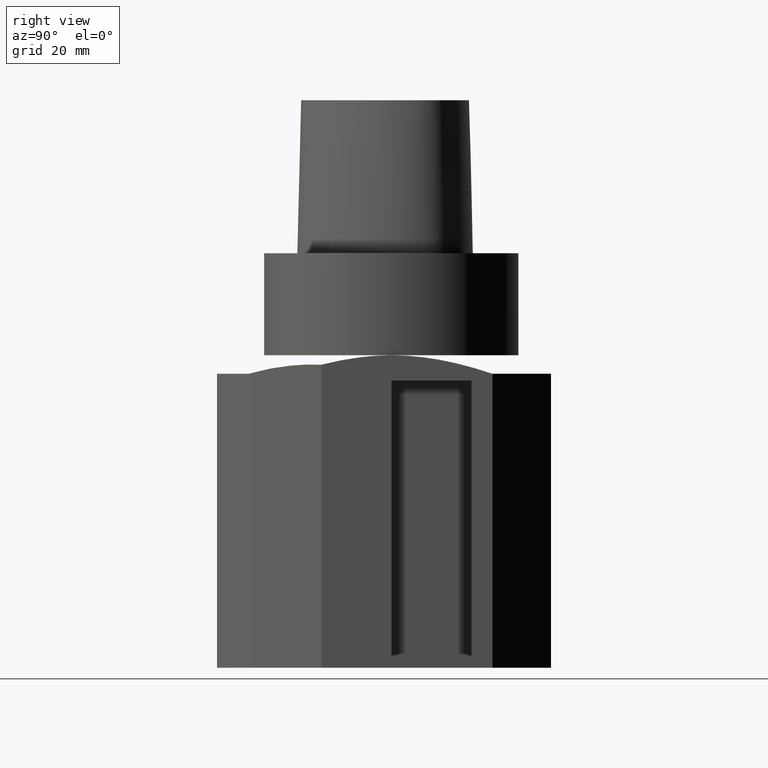
[diagram: clean part render]
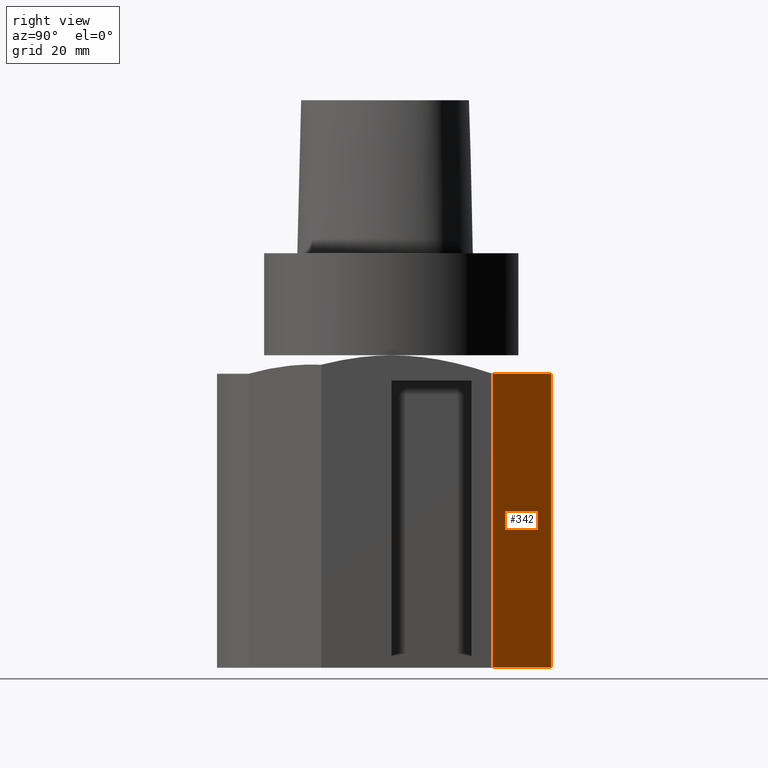
[diagram: same view with one face highlighted and labeled with its STEP entity id]
A machine part, right view. The second image highlights one B-rep face of the part: STEP entity #342.
In plain terms, the highlighted cylindrical surface (partial cylindrical patch) has radius 54.9999 mm, axis along (0, 0, 1).
Its self-contained STEP definition (entity closure, byte-faithful):
#209=EDGE_CURVE('240[2]',#510,#511,#512,.F.);
#307=EDGE_CURVE('240[2]',#510,#540,#634,.T.);
#313=EDGE_CURVE('240[2]',#540,#398,#640,.T.);
#337=EDGE_CURVE('240[2]',#511,#398,#666,.T.);
#342=ADVANCED_FACE('240[2]',(#671),#672,.T.);
#398=VERTEX_POINT('',#1114);
#510=VERTEX_POINT('',#1298);
#511=VERTEX_POINT('',#1299);
#512=CIRCLE('',#1300,54.9998880971371);
#540=VERTEX_POINT('',#1355);
#634=LINE('',#1587,#1588);
#640=B_SPLINE_CURVE_WITH_KNOTS('',3,(#1598,#1599,#1600,#1601,#1602,#1603,#1604,#1605,#1606,#1607,#1608,#1609,#1610,#1611,#1612,#1613,#1614,#1615,#1616,#1617,#1618,#1619,#1620,#1621,#1622,#1623,#1624,#1625,#1626,#1627,#1628,#1629,#1630,#1631,#1632,#1633,#1634,#1635,#1636,#1637,#1638,#1639,#1640,#1641,#1642,#1643,#1644,#1645,#1646,#1647,#1648,#1649,#1650,#1651,#1652,#1653,#1654,#1655,#1656,#1657,#1658,#1659,#1660,#1661,#1662,#1663,#1664,#1665,#1666,#1667,#1668,#1669,#1670,#1671,#1672,#1673,#1674,#1675,#1676,#1677,#1678,#1679,#1680,#1681,#1682,#1683,#1684,#1685,#1686,#1687,#1688,#1689,#1690,#1691,#1692,#1693,#1694,#1695,#1696,#1697,#1698,#1699,#1700,#1701,#1702,#1703,#1704,#1705,#1706,#1707,#1708,#1709,#1710,#1711,#1712,#1713,#1714,#1715,#1716,#1717,#1718,#1719,#1720,#1721,#1722,#1723,#1724,#1725,#1726,#1727,#1728,#1729,#1730,#1731,#1732,#1733,#1734,#1735,#1736,#1737,#1738,#1739,#1740,#1741,#1742,#1743,#1744,#1745,#1746,#1747,#1748,#1749,#1750,#1751,#1752,#1753,#1754,#1755,#1756,#1757,#1758,#1759,#1760,#1761,#1762,#1763,#1764,#1765,#1766,#1767,#1768,#1769,#1770,#1771,#1772,#1773,#1774,#1775,#1776,#1777,#1778,#1779,#1780,#1781,#1782,#1783,#1784,#1785,#1786,#1787,#1788,#1789,#1790,#1791,#1792,#1793,#1794,#1795,#1796,#1797,#1798,#1799,#1800,#1801,#1802,#1803,#1804,#1805,#1806,#1807,#1808,#1809,#1810,#1811,#1812,#1813,#1814,#1815,#1816,#1817,#1818,#1819,#1820,#1821,#1822,#1823,#1824,#1825,#1826,#1827,#1828,#1829,#1830,#1831,#1832,#1833,#1834,#1835,#1836,#1837,#1838,#1839,#1840,#1841,#1842,#1843,#1844,#1845,#1846,#1847,#1848,#1849,#1850,#1851,#1852,#1853,#1854,#1855,#1856,#1857,#1858,#1859,#1860,#1861,#1862,#1863,#1864,#1865,#1866,#1867,#1868,#1869,#1870,#1871,#1872,#1873,#1874,#1875,#1876,#1877,#1878,#1879,#1880,#1881,#1882,#1883,#1884,#1885,#1886,#1887,#1888,#1889,#1890,#1891,#1892,#1893,#1894,#1895,#1896,#1897,#1898,#1899,#1900,#1901,#1902,#1903,#1904,#1905,#1906,#1907,#1908,#1909,#1910,#1911,#1912,#1913,#1914,#1915,#1916,#1917,#1918,#1919,#1920,#1921,#1922,#1923,#1924,#1925,#1926,#1927,#1928,#1929,#1930,#1931,#1932,#1933,#1934,#1935,#1936,#1937,#1938,#1939,#1940,#1941,#1942,#1943,#1944,#1945,#1946,#1947,#1948,#1949,#1950,#1951,#1952,#1953,#1954,#1955,#1956,#1957,#1958,#1959,#1960,#1961,#1962,#1963,#1964,#1965,#1966,#1967,#1968,#1969,#1970,#1971,#1972,#1973,#1974,#1975,#1976,#1977,#1978,#1979,#1980,#1981,#1982,#1983,#1984,#1985,#1986,#1987,#1988,#1989,#1990,#1991,#1992,#1993,#1994,#1995,#1996,#1997,#1998,#1999,#2000,#2001,#2002,#2003,#2004,#2005,#2006,#2007,#2008,#2009,#2010,#2011,#2012,#2013,#2014,#2015,#2016,#2017,#2018,#2019,#2020,#2021,#2022,#2023,#2024,#2025,#2026,#2027,#2028,#2029,#2030,#2031,#2032,#2033,#2034,#2035,#2036,#2037,#2038,#2039,#2040,#2041,#2042,#2043,#2044,#2045,#2046,#2047,#2048,#2049,#2050,#2051,#2052,#2053,#2054,#2055,#2056,#2057,#2058,#2059,#2060,#2061,#2062,#2063,#2064,#2065,#2066,#2067,#2068,#2069,#2070,#2071,#2072,#2073,#2074,#2075,#2076,#2077,#2078,#2079,#2080,#2081,#2082,#2083,#2084,#2085,#2086,#2087,#2088,#2089,#2090,#2091,#2092,#2093,#2094,#2095,#2096,#2097,#2098,#2099,#2100,#2101,#2102),.UNSPECIFIED.,.F.,.F.,(4,3,2,2,2,2,2,2,2,2,2,2,2,2,2,2,2,2,2,2,2,2,2,2,2,2,2,2,2,2,2,2,2,2,2,2,2,2,2,2,2,2,2,2,2,2,2,2,2,2,2,2,2,2,2,2,2,2,2,2,2,2,2,2,2,2,2,2,2,2,2,2,2,2,2,2,2,2,2,2,2,2,2,2,2,2,2,2,2,2,2,2,2,2,2,2,2,2,2,2,2,2,2,2,2,2,2,2,2,2,2,2,2,2,2,2,2,2,2,2,2,2,2,2,2,2,2,2,2,2,2,2,2,2,2,2,2,2,2,2,2,2,2,2,2,2,2,2,2,2,2,2,2,2,2,2,2,2,2,2,2,2,2,2,2,2,2,2,2,2,2,2,2,2,2,2,2,2,2,2,2,2,2,2,2,2,2,2,2,2,2,2,2,2,2,2,2,2,2,2,2,2,2,2,2,2,2,2,2,2,2,2,2,2,2,2,2,2,2,2,2,2,2,2,2,2,2,2,2,2,2,2,2,2,2,2,2,2,2,2,2,2,2,2,2,2,2,2,2,2,2,4),(103.284490252078,108.884484553064,108.914830467083,108.993926197315,109.073021927548,109.152117657781,109.310309158959,109.468500660139,109.547596390372,109.587144252943,109.626692115515,109.705787845747,109.78488357598,109.943075077159,110.022170807392,110.101266537625,110.259458038804,110.417649539983,110.575841041163,110.654936771394,110.734032501628,110.81312823186,110.892223962092,111.050415463272,111.208606964451,111.248154827023,111.287702689594,111.366798419827,111.445894150059,111.485442012631,111.524989875203,111.604085605436,111.683181335669,111.762277065902,111.841372796134,111.920468526367,111.9995642566,112.039112119171,112.078659981743,112.118207844314,112.157755706886,112.315947208066,112.474138709245,112.632330210424,112.711425940656,112.790521670889,112.83006953346,112.869617396032,112.889391327,112.909165257968,112.928939188936,112.948713119904,113.027808850137,113.106904580369,113.265096081548,113.30464394412,113.344191806692,113.383739669264,113.423287531836,113.581479033015,113.660574763248,113.73967049348,113.818766223712,113.897861953945,114.056053455124,114.214244956303,114.372436457482,114.451532187715,114.530627917948,114.609723648181,114.688819378413,114.767915108646,114.847010838878,114.92610656911,114.965654431683,115.005202294254,115.084298024488,115.16339375472,115.202941617292,115.242489479863,115.321585210096,115.479776711275,115.558872441507,115.63796817174,115.717063901973,115.756611764545,115.796159627116,115.875255357348,115.954351087581,116.112542588761,116.270734089941,116.349829820173,116.428925550406,116.468473412977,116.508021275549,116.547569138121,116.587117000693,116.745308501872,116.824404232104,116.903499962337,116.982595692569,117.061691422802,117.219882923981,117.298978654215,117.338526516786,117.378074379358,117.45717010959,117.536265839823,117.615361570056,117.694457300288,117.773553030521,117.852648760754,117.931744490987,118.010840221219,118.089935951451,118.169031681684,118.248127411917,118.32722314215,118.406318872382,118.485414602615,118.643606103794,118.801797604972,118.880893335205,118.959989065439,119.039084795672,119.118180525905,119.276372027083,119.434563528262,119.592755029441,119.75094653062,119.909138031799,120.067329532977,120.225521034158,120.383712535338,120.541904036517,120.620999766751,120.700095496983,120.858286998161,121.016478499339,121.056026361911,121.095574224483,121.174669954715,121.253765684948,121.332861415181,121.411957145413,121.491052875646,121.570148605879,121.649244336112,121.807435837291,121.96562733847,122.123818839649,122.202914569881,122.282010300114,122.321558162686,122.361106025259,122.440201755491,122.479749618062,122.519297480634,122.558845343206,122.598393205778,122.677488936011,122.756584666243,122.914776167421,122.993871897653,123.072967627887,123.15206335812,123.231159088352,123.389350589531,123.547542090711,123.70573359189,123.745281454462,123.784829317033,123.863925047265,124.022116548445,124.101212278679,124.180308008912,124.33849951009,124.417595240324,124.496690970556,124.575786700788,124.654882431021,124.813073932199,124.971265433378,125.050361163611,125.129456893844,125.208552624076,125.287648354309,125.366744084542,125.445839814775,125.524935545007,125.56448340758,125.584257338547,125.604031269515,125.643579132086,125.683126994658,125.762222724891,125.841318455124,125.920414185356,125.999509915589,126.078605645822,126.236797147001,126.39498864818,126.553180149359,126.711371650537,126.79046738077,126.869563111003,126.948658841236,127.027754571468,127.185946072648,127.265041802881,127.304589665453,127.344137528024,127.423233258257,127.502328988489,127.581424718722,127.660520448954,127.818711950134,127.897807680366,127.976903410599,128.055999140832,128.135094871065,128.214190601297,128.29328633153,128.372382061763,128.411929924335,128.451477786906,128.530573517139,128.609669247371,128.688764977603,128.767860707837,128.846956438069,128.886504300641,128.926052163213,129.005147893446,129.044695756017,129.084243618589,129.242435119768,129.28198298234,129.301756913307,129.321530844275,129.361078706847,129.400626569419,129.558818070597,129.63791380083,129.717009531064,129.875201032243,129.954296762476,130.033392492708,130.11248822294,130.191583953174,130.349775454352,130.402928584058),.UNSPECIFIED.);
#666=LINE('',#2241,#2242);
#671=FACE_OUTER_BOUND('',#2259,.T.);
#672=CYLINDRICAL_SURFACE('',#2260,54.9998880971371);
#1114=CARTESIAN_POINT('',(45.000001788139,31.6227706304615,-37.773504809543));
#1298=CARTESIAN_POINT('',(22.9128667639617,49.9999999999993,-130.0));
#1299=CARTESIAN_POINT('',(45.0000017881392,31.6227706304607,-130.0));
#1300=AXIS2_PLACEMENT_3D('',#2412,#2413,#2414);
#1355=CARTESIAN_POINT('',(22.9128667639617,49.9999999999993,-37.7735031303128));
#1587=CARTESIAN_POINT('',(22.9128667639617,49.9999999999993,-310.0));
#1588=VECTOR('',#2554,1.0);
#1598=CARTESIAN_POINT('',(22.9128667639617,49.9999999999993,-37.7735031303128));
#1599=CARTESIAN_POINT('',(24.7634690952616,49.1519493209068,-37.7735038724235));
#1600=CARTESIAN_POINT('',(26.5689742921684,48.2002499516154,-37.7735044883634));
#1601=CARTESIAN_POINT('',(28.3205073370593,47.1481566846341,-37.7735049738673));
#1602=CARTESIAN_POINT('',(28.3299987522867,47.1424554767214,-37.7735049764981));
#1603=CARTESIAN_POINT('',(28.3393335728328,47.1368442998458,-37.7735049790821));
#1604=CARTESIAN_POINT('',(28.3705951764034,47.1180415731635,-37.7735049877259));
#1605=CARTESIAN_POINT('',(28.397694746836,47.101713841878,-37.7735049951942));
#1606=CARTESIAN_POINT('',(28.4428398122524,47.0744663225595,-37.7735050075947));
#1607=CARTESIAN_POINT('',(28.4699143043848,47.0580970402802,-37.7735050150068));
#1608=CARTESIAN_POINT('',(28.515017519531,47.0307803013839,-37.7735050273136));
#1609=CARTESIAN_POINT('',(28.5420668696542,47.0143695066295,-37.7735050346696));
#1610=CARTESIAN_POINT('',(28.6096587693675,46.9732906582884,-37.7735050529893));
#1611=CARTESIAN_POINT('',(28.6636818188411,46.9403446677461,-37.7735050675326));
#1612=CARTESIAN_POINT('',(28.7536358978681,46.8852966309674,-37.773505091584));
#1613=CARTESIAN_POINT('',(28.8075576162246,46.8521850550952,-37.7735051059023));
#1614=CARTESIAN_POINT('',(28.8748961884647,46.8106922439517,-37.7735051236596));
#1615=CARTESIAN_POINT('',(28.901818874985,46.7940744680142,-37.7735051307344));
#1616=CARTESIAN_POINT('',(28.9354562904235,46.7732764428484,-37.7735051395426));
#1617=CARTESIAN_POINT('',(28.9489080646554,46.7649520738362,-37.7735051430589));
#1618=CARTESIAN_POINT('',(28.9713223661341,46.751069528685,-37.7735051489076));
#1619=CARTESIAN_POINT('',(28.9847677516988,46.7427348447407,-37.7735051524098));
#1620=CARTESIAN_POINT('',(29.0183732238025,46.7218852449162,-37.7735051611477));
#1621=CARTESIAN_POINT('',(29.0452448010011,46.7051849495471,-37.7735051681098));
#1622=CARTESIAN_POINT('',(29.090009401551,46.6773167817195,-37.7735051796665));
#1623=CARTESIAN_POINT('',(29.1168553292119,46.660575285532,-37.7735051865723));
#1624=CARTESIAN_POINT('',(29.1839380387193,46.6186700737674,-37.7735052037664));
#1625=CARTESIAN_POINT('',(29.2375527223723,46.5850636180778,-37.773505217409));
#1626=CARTESIAN_POINT('',(29.3045065527979,46.5429527966748,-37.7735052343214));
#1627=CARTESIAN_POINT('',(29.3312751530609,46.5260879347859,-37.7735052410581));
#1628=CARTESIAN_POINT('',(29.3758679150669,46.4979456211432,-37.773505252239));
#1629=CARTESIAN_POINT('',(29.4026106134714,46.4810397165942,-37.7735052589194));
#1630=CARTESIAN_POINT('',(29.4694349346203,46.4387236819158,-37.7735052755497));
#1631=CARTESIAN_POINT('',(29.5228424036566,46.4047888853437,-37.7735052887412));
#1632=CARTESIAN_POINT('',(29.6117679884803,46.3480944142678,-37.7735053105389));
#1633=CARTESIAN_POINT('',(29.6650710956822,46.3139959255935,-37.7735053235046));
#1634=CARTESIAN_POINT('',(29.7538223258193,46.2570289014833,-37.7735053449259));
#1635=CARTESIAN_POINT('',(29.8070205694778,46.2227670416546,-37.7735053576658));
#1636=CARTESIAN_POINT('',(29.8734525938459,46.1798377646257,-37.7735053734493));
#1637=CARTESIAN_POINT('',(29.9000122206838,46.1626456807271,-37.7735053797345));
#1638=CARTESIAN_POINT('',(29.9442562754572,46.1339582643629,-37.7735053901627));
#1639=CARTESIAN_POINT('',(29.9707894987308,46.11672545875,-37.7735053963914));
#1640=CARTESIAN_POINT('',(30.0149894955209,46.0879702066343,-37.7735054067253));
#1641=CARTESIAN_POINT('',(30.0414962527943,46.070696719858,-37.7735054128975));
#1642=CARTESIAN_POINT('',(30.0856520875937,46.0418736996552,-37.7735054231373));
#1643=CARTESIAN_POINT('',(30.1121323164941,46.0245595723616,-37.7735054292528));
#1644=CARTESIAN_POINT('',(30.1782996812063,45.9812234842255,-37.7735054444711));
#1645=CARTESIAN_POINT('',(30.2311803338731,45.9464734519838,-37.7735054565326));
#1646=CARTESIAN_POINT('',(30.3192258081885,45.8884216032671,-37.7735054764465));
#1647=CARTESIAN_POINT('',(30.3719996003924,45.8535094990098,-37.7735054882817));
#1648=CARTESIAN_POINT('',(30.4269164464806,45.8170584418414,-37.773505500492));
#1649=CARTESIAN_POINT('',(30.4400931302681,45.8083051365341,-37.7735055034154));
#1650=CARTESIAN_POINT('',(30.462048673548,45.7937078734367,-37.773505508276));
#1651=CARTESIAN_POINT('',(30.4752186397591,45.7849444643153,-37.7735055111852));
#1652=CARTESIAN_POINT('',(30.5081351524651,45.7630233156354,-37.7735055184407));
#1653=CARTESIAN_POINT('',(30.5344549048019,45.7454662041558,-37.7735055242167));
#1654=CARTESIAN_POINT('',(30.5782987022362,45.716170715305,-37.7735055337962));
#1655=CARTESIAN_POINT('',(30.6045914913451,45.6985732505039,-37.7735055395156));
#1656=CARTESIAN_POINT('',(30.6374405960033,45.6765512185514,-37.7735055466294));
#1657=CARTESIAN_POINT('',(30.6505768581996,45.6677373678068,-37.7735055494679));
#1658=CARTESIAN_POINT('',(30.6724649934681,45.6530392214903,-37.7735055541868));
#1659=CARTESIAN_POINT('',(30.6855944916625,45.6442152979522,-37.7735055570111));
#1660=CARTESIAN_POINT('',(30.7184097763117,45.6221429020338,-37.7735055640541));
#1661=CARTESIAN_POINT('',(30.7446484534209,45.6044648549093,-37.7735055696602));
#1662=CARTESIAN_POINT('',(30.7883569709214,45.5749679103494,-37.7735055789564));
#1663=CARTESIAN_POINT('',(30.8145684993853,45.5572496344133,-37.7735055845058));
#1664=CARTESIAN_POINT('',(30.8582317177321,45.5276856765582,-37.7735055937075));
#1665=CARTESIAN_POINT('',(30.8844160358727,45.5099272135031,-37.7735055992002));
#1666=CARTESIAN_POINT('',(30.9280338523221,45.4802963119196,-37.7735056083075));
#1667=CARTESIAN_POINT('',(30.9541908985251,45.462497703533,-37.7735056137434));
#1668=CARTESIAN_POINT('',(30.9977632104401,45.4327999279455,-37.7735056227561));
#1669=CARTESIAN_POINT('',(31.0238929231555,45.4149612161092,-37.7735056281354));
#1670=CARTESIAN_POINT('',(31.0674196280062,45.3851966363994,-37.7735056370536));
#1671=CARTESIAN_POINT('',(31.0935219457482,45.3673178630896,-37.7735056423761));
#1672=CARTESIAN_POINT('',(31.1261326915717,45.3449443782246,-37.7735056489938));
#1673=CARTESIAN_POINT('',(31.139173556333,45.3359899828952,-37.7735056516338));
#1674=CARTESIAN_POINT('',(31.1609026060577,45.3210576565954,-37.773505656022));
#1675=CARTESIAN_POINT('',(31.1739365990486,45.3120932616828,-37.7735056586478));
#1676=CARTESIAN_POINT('',(31.1956541894322,45.2971442738044,-37.7735056630123));
#1677=CARTESIAN_POINT('',(31.2086813029852,45.2881698845821,-37.7735056656239));
#1678=CARTESIAN_POINT('',(31.230387421252,45.2732042439191,-37.7735056699647));
#1679=CARTESIAN_POINT('',(31.2434076477036,45.2642198656665,-37.7735056725622));
#1680=CARTESIAN_POINT('',(31.2976442451143,45.2267641444175,-37.7735056833552));
#1681=CARTESIAN_POINT('',(31.3496561626348,45.1907268220543,-37.7735056936029));
#1682=CARTESIAN_POINT('',(31.436250455614,45.1305317133635,-37.7735057104932));
#1683=CARTESIAN_POINT('',(31.4881515674097,45.0943349902846,-37.7735057205138));
#1684=CARTESIAN_POINT('',(31.5745607768686,45.0338744973368,-37.7735057370254));
#1685=CARTESIAN_POINT('',(31.626350594426,44.99751871424,-37.7735057468187));
#1686=CARTESIAN_POINT('',(31.6910180733448,44.9519747370515,-37.7735057589182));
#1687=CARTESIAN_POINT('',(31.7168710801523,44.9337373149316,-37.7735057637296));
#1688=CARTESIAN_POINT('',(31.7599360989471,44.9033085719958,-37.7735057717012));
#1689=CARTESIAN_POINT('',(31.7857610994931,44.8850315133329,-37.7735057764557));
#1690=CARTESIAN_POINT('',(31.8180248170795,44.8621604378082,-37.7735057823634));
#1691=CARTESIAN_POINT('',(31.8309267942326,44.8530070594715,-37.7735057847193));
#1692=CARTESIAN_POINT('',(31.8524242374458,44.8377431836218,-37.7735057886341));
#1693=CARTESIAN_POINT('',(31.8653191902516,44.8285799122858,-37.7735057909758));
#1694=CARTESIAN_POINT('',(31.8814334873991,44.817119642579,-37.7735057938941));
#1695=CARTESIAN_POINT('',(31.8878783270788,44.8125342988787,-37.7735057950596));
#1696=CARTESIAN_POINT('',(31.8986182609664,44.804889999881,-37.7735057969992));
#1697=CARTESIAN_POINT('',(31.9050613417149,44.8003021849529,-37.7735057981612));
#1698=CARTESIAN_POINT('',(31.9157983432609,44.7926537678045,-37.7735058000948));
#1699=CARTESIAN_POINT('',(31.9222396641307,44.7880634823232,-37.7735058012533));
#1700=CARTESIAN_POINT('',(31.932973731756,44.7804109481487,-37.773505803181));
#1701=CARTESIAN_POINT('',(31.9394132917998,44.7758181927894,-37.7735058043359));
#1702=CARTESIAN_POINT('',(31.9662411238409,44.7566765663702,-37.7735058091404));
#1703=CARTESIAN_POINT('',(31.9919817412545,44.7382808564969,-37.7735058137243));
#1704=CARTESIAN_POINT('',(32.0348592421059,44.7075884443858,-37.7735058213168));
#1705=CARTESIAN_POINT('',(32.0605716105797,44.6891532705591,-37.7735058258438));
#1706=CARTESIAN_POINT('',(32.1248171748808,44.6430160387877,-37.7735058370902));
#1707=CARTESIAN_POINT('',(32.1761569513763,44.6060274524853,-37.7735058459736));
#1708=CARTESIAN_POINT('',(32.229576714953,44.5674156872785,-37.7735058551084));
#1709=CARTESIAN_POINT('',(32.2423939001877,44.5581439500032,-37.7735058572937));
#1710=CARTESIAN_POINT('',(32.2637499478968,44.542682863466,-37.7735058609239));
#1711=CARTESIAN_POINT('',(32.2765600180287,44.5334012982609,-37.7735058630949));
#1712=CARTESIAN_POINT('',(32.2979042009525,44.5179238363895,-37.7735058667014));
#1713=CARTESIAN_POINT('',(32.3107071484458,44.5086324487147,-37.7735058688582));
#1714=CARTESIAN_POINT('',(32.3320394540282,44.4931386206141,-37.773505872441));
#1715=CARTESIAN_POINT('',(32.3448352713513,44.4838374159354,-37.7735058745836));
#1716=CARTESIAN_POINT('',(32.3981363242981,44.4450619429182,-37.7735058834812));
#1717=CARTESIAN_POINT('',(32.4492481766378,44.4077590379691,-37.773505891909));
#1718=CARTESIAN_POINT('',(32.5130663840218,44.3610324599411,-37.7735059023014));
#1719=CARTESIAN_POINT('',(32.5385793195564,44.3423222582587,-37.7735059064299));
#1720=CARTESIAN_POINT('',(32.5810769487006,44.3111059843365,-37.7735059132631));
#1721=CARTESIAN_POINT('',(32.6065611531389,44.2923566683303,-37.7735059173346));
#1722=CARTESIAN_POINT('',(32.6490108471365,44.2610752406147,-37.773505924073));
#1723=CARTESIAN_POINT('',(32.6744662605122,44.2422868544033,-37.7735059280875));
#1724=CARTESIAN_POINT('',(32.7168679194757,44.2109403465021,-37.7735059347308));
#1725=CARTESIAN_POINT('',(32.7422944818898,44.1921129342963,-37.7735059386883));
#1726=CARTESIAN_POINT('',(32.805824779021,44.1449956547241,-37.7735059485108));
#1727=CARTESIAN_POINT('',(32.8565911397055,44.1072239088009,-37.7735059562548));
#1728=CARTESIAN_POINT('',(32.9411050727814,44.0441412820102,-37.7735059689714));
#1729=CARTESIAN_POINT('',(32.9917553124664,44.0062139648483,-37.7735059764873));
#1730=CARTESIAN_POINT('',(33.0760753130322,43.942872349844,-37.7735059888236));
#1731=CARTESIAN_POINT('',(33.1266089549783,43.9047898184299,-37.7735059961113));
#1732=CARTESIAN_POINT('',(33.1897029053683,43.8570898172551,-37.7735060050784));
#1733=CARTESIAN_POINT('',(33.2149258395977,43.8379904686946,-37.7735060086366));
#1734=CARTESIAN_POINT('',(33.2569396359226,43.8061259875463,-37.7735060145195));
#1735=CARTESIAN_POINT('',(33.2821332424537,43.7869879699758,-37.7735060180208));
#1736=CARTESIAN_POINT('',(33.3240981098647,43.7550590779864,-37.7735060238085));
#1737=CARTESIAN_POINT('',(33.3492623294147,43.7358824364394,-37.7735060272527));
#1738=CARTESIAN_POINT('',(33.3911781691643,43.7038892087408,-37.7735060329453));
#1739=CARTESIAN_POINT('',(33.4163129425189,43.684673988342,-37.7735060363324));
#1740=CARTESIAN_POINT('',(33.4581796559749,43.6526165002175,-37.7735060419299));
#1741=CARTESIAN_POINT('',(33.48328492399,43.6333627461819,-37.7735060452599));
#1742=CARTESIAN_POINT('',(33.5251024126362,43.6012410730657,-37.7735060507622));
#1743=CARTESIAN_POINT('',(33.5501781162363,43.5819488306996,-37.7735060540351));
#1744=CARTESIAN_POINT('',(33.5919462816717,43.5497630481773,-37.7735060594423));
#1745=CARTESIAN_POINT('',(33.6169923618515,43.530432362877,-37.773506062658));
#1746=CARTESIAN_POINT('',(33.648281419136,43.5062450012513,-37.773506066642));
#1747=CARTESIAN_POINT('',(33.6607933302983,43.4965652580463,-37.7735060682285));
#1748=CARTESIAN_POINT('',(33.6816403271436,43.480424356795,-37.7735060708607));
#1749=CARTESIAN_POINT('',(33.6941448103561,43.4707350199227,-37.7735060724328));
#1750=CARTESIAN_POINT('',(33.7253967278942,43.4464996899605,-37.7735060763454));
#1751=CARTESIAN_POINT('',(33.750383384496,43.4270922553427,-37.773506079447));
#1752=CARTESIAN_POINT('',(33.7920029910588,43.3947145996212,-37.7735060845685));
#1753=CARTESIAN_POINT('',(33.8169598476421,43.3752688588014,-37.7735060876129));
#1754=CARTESIAN_POINT('',(33.848137265158,43.3509377633637,-37.7735060913827));
#1755=CARTESIAN_POINT('',(33.8606044983695,43.3412005437661,-37.7735060928835));
#1756=CARTESIAN_POINT('',(33.8813769952323,43.3249638770903,-37.7735060953729));
#1757=CARTESIAN_POINT('',(33.8938367564233,43.3152170981098,-37.7735060968594));
#1758=CARTESIAN_POINT('',(33.9249768138394,43.2908382057579,-37.7735061005577));
#1759=CARTESIAN_POINT('',(33.9498738942793,43.2713159898962,-37.7735061034878));
#1760=CARTESIAN_POINT('',(34.0120791543675,43.2224627166662,-37.7735061107416));
#1761=CARTESIAN_POINT('',(34.0617833561895,43.1833038033964,-37.7735061164304));
#1762=CARTESIAN_POINT('',(34.1238384437976,43.1342599170312,-37.7735061233985));
#1763=CARTESIAN_POINT('',(34.1486454208089,43.114623333364,-37.7735061261571));
#1764=CARTESIAN_POINT('',(34.1899652685509,43.0818639923598,-37.7735061307072));
#1765=CARTESIAN_POINT('',(34.2147420942456,43.0621893783846,-37.7735061334087));
#1766=CARTESIAN_POINT('',(34.2560116411929,43.0293666920954,-37.7735061378635));
#1767=CARTESIAN_POINT('',(34.2807582572684,43.0096540941087,-37.7735061405078));
#1768=CARTESIAN_POINT('',(34.3116726183862,42.9849896288836,-37.7735061437774));
#1769=CARTESIAN_POINT('',(34.3240345779121,42.975119101739,-37.7735061450781));
#1770=CARTESIAN_POINT('',(34.344631533441,42.9586603231209,-37.773506147234));
#1771=CARTESIAN_POINT('',(34.3569859187323,42.9487803173761,-37.7735061485204));
#1772=CARTESIAN_POINT('',(34.3878624086768,42.9240684591525,-37.7735061517186));
#1773=CARTESIAN_POINT('',(34.4125484308914,42.9042800323892,-37.7735061542485));
#1774=CARTESIAN_POINT('',(34.4536664932611,42.871267774251,-37.7735061584174));
#1775=CARTESIAN_POINT('',(34.4783221313769,42.8514415029007,-37.7735061608901));
#1776=CARTESIAN_POINT('',(34.5399232027106,42.8018285540016,-37.7735061670004));
#1777=CARTESIAN_POINT('',(34.5891431217946,42.76206264231,-37.7735061717742));
#1778=CARTESIAN_POINT('',(34.6710745568842,42.6956603635004,-37.77350617954));
#1779=CARTESIAN_POINT('',(34.7201722442321,42.6557436343712,-37.773506184085));
#1780=CARTESIAN_POINT('',(34.7814677366114,42.605753642354,-37.7735061896232));
#1781=CARTESIAN_POINT('',(34.8059705854111,42.5857388496433,-37.7735061918099));
#1782=CARTESIAN_POINT('',(34.8467830694783,42.5523495491908,-37.7735061954066));
#1783=CARTESIAN_POINT('',(34.8712551871539,42.5322971931437,-37.773506197536));
#1784=CARTESIAN_POINT('',(34.9018260996414,42.5072082936489,-37.7735062001621));
#1785=CARTESIAN_POINT('',(34.9140506146239,42.4971680455005,-37.7735062012053));
#1786=CARTESIAN_POINT('',(34.9344183874519,42.4804264864125,-37.7735062029322));
#1787=CARTESIAN_POINT('',(34.9466351980657,42.4703768651327,-37.7735062039611));
#1788=CARTESIAN_POINT('',(34.966990124289,42.4536196890844,-37.7735062056641));
#1789=CARTESIAN_POINT('',(34.9791992233472,42.443560700585,-37.7735062066788));
#1790=CARTESIAN_POINT('',(34.9995412909916,42.4267879174344,-37.7735062083579));
#1791=CARTESIAN_POINT('',(35.0117426713117,42.416719567633,-37.7735062093582));
#1792=CARTESIAN_POINT('',(35.0625656771386,42.3747486058658,-37.7735062134965));
#1793=CARTESIAN_POINT('',(35.1112939011449,42.3343816843532,-37.7735062173547));
#1794=CARTESIAN_POINT('',(35.172126701698,42.2838296610035,-37.7735062220343));
#1795=CARTESIAN_POINT('',(35.1964443014245,42.2635901978164,-37.7735062238775));
#1796=CARTESIAN_POINT('',(35.236947749927,42.2298266834872,-37.7735062269019));
#1797=CARTESIAN_POINT('',(35.2612342741071,42.2095499413966,-37.7735062286879));
#1798=CARTESIAN_POINT('',(35.3016858823932,42.1757243353045,-37.7735062316168));
#1799=CARTESIAN_POINT('',(35.3259412738784,42.1554103620237,-37.7735062333455));
#1800=CARTESIAN_POINT('',(35.366340946762,42.1215227437631,-37.773506236179));
#1801=CARTESIAN_POINT('',(35.3905651484774,42.1011715870924,-37.7735062378504));
#1802=CARTESIAN_POINT('',(35.4510866224864,42.050247252323,-37.7735062419575));
#1803=CARTESIAN_POINT('',(35.4994412553401,42.0094335579446,-37.7735062451286));
#1804=CARTESIAN_POINT('',(35.5598062108663,41.9583237855693,-37.7735062489492));
#1805=CARTESIAN_POINT('',(35.5839365015542,41.9378613664087,-37.7735062504489));
#1806=CARTESIAN_POINT('',(35.6140797372985,41.9122602159065,-37.7735062522876));
#1807=CARTESIAN_POINT('',(35.6261331030252,41.9020151329839,-37.773506253016));
#1808=CARTESIAN_POINT('',(35.6462154961926,41.8849322920222,-37.7735062542179));
#1809=CARTESIAN_POINT('',(35.6582610004947,41.8746779672981,-37.7735062549319));
#1810=CARTESIAN_POINT('',(35.6883649291164,41.8490306077906,-37.7735062566991));
#1811=CARTESIAN_POINT('',(35.712432328425,41.8284942542418,-37.7735062580842));
#1812=CARTESIAN_POINT('',(35.7525183968337,41.794236242624,-37.7735062603449));
#1813=CARTESIAN_POINT('',(35.7765542654666,41.7736629943234,-37.7735062616727));
#1814=CARTESIAN_POINT('',(35.8165877356013,41.7393435317769,-37.7735062638379));
#1815=CARTESIAN_POINT('',(35.8405920169996,41.7187334371354,-37.7735062651084));
#1816=CARTESIAN_POINT('',(35.8805727946571,41.6843526044178,-37.7735062671782));
#1817=CARTESIAN_POINT('',(35.9045454323359,41.6637057119334,-37.7735062683914));
#1818=CARTESIAN_POINT('',(35.9444734234379,41.6292635899457,-37.7735062703657));
#1819=CARTESIAN_POINT('',(35.9684143609882,41.6085799482018,-37.7735062715216));
#1820=CARTESIAN_POINT('',(36.0082894715804,41.5740766179896,-37.7735062734004));
#1821=CARTESIAN_POINT('',(36.0321986526663,41.5533562756573,-37.773506274499));
#1822=CARTESIAN_POINT('',(36.0720207889185,41.5187918184105,-37.7735062762823));
#1823=CARTESIAN_POINT('',(36.0958981572795,41.4980348242466,-37.7735062773236));
#1824=CARTESIAN_POINT('',(36.1356672254864,41.4634093212986,-37.7735062790114));
#1825=CARTESIAN_POINT('',(36.1595127249366,41.4426157241464,-37.7735062799954));
#1826=CARTESIAN_POINT('',(36.1992286315176,41.4079292569745,-37.7735062815877));
#1827=CARTESIAN_POINT('',(36.2230422059463,41.3870991057634,-37.7735062825144));
#1828=CARTESIAN_POINT('',(36.2627048574465,41.3523517559878,-37.7735062840111));
#1829=CARTESIAN_POINT('',(36.2864864508186,41.3314850997327,-37.7735062848805));
#1830=CARTESIAN_POINT('',(36.326095753908,41.2966769491172,-37.7735062862818));
#1831=CARTESIAN_POINT('',(36.3498453102626,41.2757738369198,-37.7735062870939));
#1832=CARTESIAN_POINT('',(36.3894011717361,41.2409049673718,-37.7735062883996));
#1833=CARTESIAN_POINT('',(36.413118635188,41.2199654484192,-37.7735062891544));
#1834=CARTESIAN_POINT('',(36.4526209619671,41.1850359419885,-37.7735062903646));
#1835=CARTESIAN_POINT('',(36.4763062767071,41.1640600655532,-37.7735062910621));
#1836=CARTESIAN_POINT('',(36.5157549758391,41.129070004432,-37.7735062921768));
#1837=CARTESIAN_POINT('',(36.5394080861335,41.1080578198722,-37.773506292817));
#1838=CARTESIAN_POINT('',(36.5985005642599,41.0554820106366,-37.7735062943457));
#1839=CARTESIAN_POINT('',(36.6457099749911,41.0133488917675,-37.7735062954541));
#1840=CARTESIAN_POINT('',(36.724284514687,40.9430064124374,-37.7735062971103));
#1841=CARTESIAN_POINT('',(36.7713644406546,40.9007286554239,-37.7735062979894));
#1842=CARTESIAN_POINT('',(36.8301332072808,40.8477912512838,-37.773506298945));
#1843=CARTESIAN_POINT('',(36.8536244619956,40.8265982694623,-37.7735062992986));
#1844=CARTESIAN_POINT('',(36.8927494503181,40.7912466142075,-37.7735062998401));
#1845=CARTESIAN_POINT('',(36.9162081677805,40.770017622201,-37.7735063001363));
#1846=CARTESIAN_POINT('',(36.955278881332,40.7346059915821,-37.7735063005823));
#1847=CARTESIAN_POINT('',(36.9787050063407,40.7133410393449,-37.7735063008212));
#1848=CARTESIAN_POINT('',(37.0177213531837,40.6778695166892,-37.7735063011717));
#1849=CARTESIAN_POINT('',(37.0411148306151,40.6565686542597,-37.7735063013533));
#1850=CARTESIAN_POINT('',(37.0995576731305,40.6032716482782,-37.7735063017356));
#1851=CARTESIAN_POINT('',(37.1462464908986,40.5605623698642,-37.7735063019269));
#1852=CARTESIAN_POINT('',(37.2239519036479,40.4892609567213,-37.7735063020546));
#1853=CARTESIAN_POINT('',(37.27050947147,40.4464086400311,-37.7735063020165));
#1854=CARTESIAN_POINT('',(37.3479957688704,40.3748691655994,-37.773506301762));
#1855=CARTESIAN_POINT('',(37.3944216485291,40.3318742139751,-37.7735063014946));
#1856=CARTESIAN_POINT('',(37.47168810125,40.2600973516115,-37.773506300858));
#1857=CARTESIAN_POINT('',(37.517981855767,40.2169601697382,-37.7735063003614));
#1858=CARTESIAN_POINT('',(37.5950277365467,40.1449465950342,-37.7735062993426));
#1859=CARTESIAN_POINT('',(37.6411889301876,40.1016675889356,-37.7735062986167));
#1860=CARTESIAN_POINT('',(37.7180135138409,40.0294179797103,-37.7735062972157));
#1861=CARTESIAN_POINT('',(37.7640417121188,39.9859975567449,-37.7735062962605));
#1862=CARTESIAN_POINT('',(37.8406442755442,39.9135125930387,-37.7735062944775));
#1863=CARTESIAN_POINT('',(37.886539045225,39.8699511618952,-37.773506293293));
#1864=CARTESIAN_POINT('',(37.96291886741,39.7972315259642,-37.7735062911278));
#1865=CARTESIAN_POINT('',(38.0086797765138,39.7535294966602,-37.7735062897141));
#1866=CARTESIAN_POINT('',(38.0848361385416,39.6805758729698,-37.7735062871669));
#1867=CARTESIAN_POINT('',(38.1304627563493,39.6367336568456,-37.7735062855239));
#1868=CARTESIAN_POINT('',(38.1874118902574,39.5818434679676,-37.7735062833269));
#1869=CARTESIAN_POINT('',(38.2101746931175,39.5598699308708,-37.7735062824195));
#1870=CARTESIAN_POINT('',(38.2480845975746,39.5232182817327,-37.7735062808593));
#1871=CARTESIAN_POINT('',(38.2708136666823,39.5012098528006,-37.7735062798945));
#1872=CARTESIAN_POINT('',(38.3275941318501,39.4461452047664,-37.773506277411));
#1873=CARTESIAN_POINT('',(38.3729508799683,39.4020238542961,-37.7735062753096));
#1874=CARTESIAN_POINT('',(38.4484325690956,39.3283723961087,-37.7735062716163));
#1875=CARTESIAN_POINT('',(38.4936537413609,39.2841121007395,-37.7735062692857));
#1876=CARTESIAN_POINT('',(38.5406883473391,39.2379354248803,-37.7735062667386));
#1877=CARTESIAN_POINT('',(38.5519723989918,39.2268486973315,-37.7735062661201));
#1878=CARTESIAN_POINT('',(38.5707720641856,39.2083636071431,-37.7735062650774));
#1879=CARTESIAN_POINT('',(38.5820476091066,39.1972682280969,-37.7735062644446));
#1880=CARTESIAN_POINT('',(38.6102258329834,39.1695189710381,-37.7735062628448));
#1881=CARTESIAN_POINT('',(38.6327513792081,39.1473022815044,-37.7735062615363));
#1882=CARTESIAN_POINT('',(38.6702655452303,39.110245681713,-37.7735062593077));
#1883=CARTESIAN_POINT('',(38.692756984991,39.0879944645767,-37.7735062579418));
#1884=CARTESIAN_POINT('',(38.7302142627862,39.0508803623967,-37.7735062556177));
#1885=CARTESIAN_POINT('',(38.7526715431587,39.028594670017,-37.7735062541946));
#1886=CARTESIAN_POINT('',(38.7900718445863,38.9914231527814,-37.7735062517751));
#1887=CARTESIAN_POINT('',(38.8124949127261,38.9691030375987,-37.7735062502947));
#1888=CARTESIAN_POINT('',(38.8498381497795,38.9318741927759,-37.7735062477796));
#1889=CARTESIAN_POINT('',(38.8722269529231,38.9095197073116,-37.773506246242));
#1890=CARTESIAN_POINT('',(38.9095130377301,38.8722336225047,-37.7735062436315));
#1891=CARTESIAN_POINT('',(38.9318675231942,38.8498448193612,-37.7735062420366));
#1892=CARTESIAN_POINT('',(38.9690963680171,38.8125015823078,-37.7735062393306));
#1893=CARTESIAN_POINT('',(38.9914164831999,38.7900785141678,-37.7735062376784));
#1894=CARTESIAN_POINT('',(39.04717376862,38.7339780524007,-37.7735062334763));
#1895=CARTESIAN_POINT('',(39.0917107026985,38.689029307478,-37.7735062300002));
#1896=CARTESIAN_POINT('',(39.165823921356,38.6140009561234,-37.7735062240156));
#1897=CARTESIAN_POINT('',(39.2102227450292,38.5689157853499,-37.7735062203104));
#1898=CARTESIAN_POINT('',(39.2841054311579,38.4936604109425,-37.7735062139442));
#1899=CARTESIAN_POINT('',(39.3283657265274,38.448439238677,-37.77350621001));
#1900=CARTESIAN_POINT('',(39.3836043154292,38.3918279766879,-37.7735062049491));
#1901=CARTESIAN_POINT('',(39.4056823725866,38.3691665354561,-37.7735062028962));
#1902=CARTESIAN_POINT('',(39.4424501551826,38.3313692550852,-37.7735061994269));
#1903=CARTESIAN_POINT('',(39.4644934241627,38.308673973213,-37.7735061973167));
#1904=CARTESIAN_POINT('',(39.4920257428657,38.2802837461088,-37.7735061946432));
#1905=CARTESIAN_POINT('',(39.5030343140586,38.2689234331849,-37.7735061935666));
#1906=CARTESIAN_POINT('',(39.5213746703222,38.2499825434803,-37.7735061917604));
#1907=CARTESIAN_POINT('',(39.5323745250272,38.2386137904302,-37.7735061906695));
#1908=CARTESIAN_POINT('',(39.559863261291,38.2101813626972,-37.7735061879245));
#1909=CARTESIAN_POINT('',(39.5818367983874,38.1874185598376,-37.7735061856998));
#1910=CARTESIAN_POINT('',(39.6092818875284,38.1589439983802,-37.7735061828832));
#1911=CARTESIAN_POINT('',(39.6202555539639,38.1475499650997,-37.7735061817494));
#1912=CARTESIAN_POINT('',(39.6385377140835,38.1285528971147,-37.7735061798479));
#1913=CARTESIAN_POINT('',(39.6495026381782,38.1171504504895,-37.7735061786998));
#1914=CARTESIAN_POINT('',(39.6677702223532,38.0981393658523,-37.7735061767744));
#1915=CARTESIAN_POINT('',(39.6787263976565,38.0867285125904,-37.773506175612));
#1916=CARTESIAN_POINT('',(39.6969793951404,38.067703422485,-37.7735061736628));
#1917=CARTESIAN_POINT('',(39.707926815207,38.0562841692991,-37.7735061724861));
#1918=CARTESIAN_POINT('',(39.735284416463,38.0277255415014,-37.7735061695265));
#1919=CARTESIAN_POINT('',(39.7571529681466,38.0048618590806,-37.7735061671302));
#1920=CARTESIAN_POINT('',(39.7935713165267,37.9667277779756,-37.7735061630887));
#1921=CARTESIAN_POINT('',(39.8154047700448,37.9438305765304,-37.7735061606352));
#1922=CARTESIAN_POINT('',(39.8699444923133,37.886545714807,-37.7735061544299));
#1923=CARTESIAN_POINT('',(39.9135059234561,37.840650945127,-37.7735061493514));
#1924=CARTESIAN_POINT('',(39.9678696415714,37.7831990274871,-37.7735061428602));
#1925=CARTESIAN_POINT('',(39.9895974926675,37.7602015925584,-37.7735061402351));
#1926=CARTESIAN_POINT('',(40.0257811691598,37.7218447705318,-37.7735061358123));
#1927=CARTESIAN_POINT('',(40.0474737170828,37.6988140325672,-37.7735061331301));
#1928=CARTESIAN_POINT('',(40.0835985123984,37.6604017506262,-37.773506128612));
#1929=CARTESIAN_POINT('',(40.1052557061034,37.6373377638198,-37.7735061258726));
#1930=CARTESIAN_POINT('',(40.1413215352367,37.5988701123528,-37.7735061212593));
#1931=CARTESIAN_POINT('',(40.1629433237618,37.5757729309765,-37.7735061184627));
#1932=CARTESIAN_POINT('',(40.2169535001563,37.517988525349,-37.7735061113998));
#1933=CARTESIAN_POINT('',(40.2600906820297,37.4716947708319,-37.7735061056351));
#1934=CARTESIAN_POINT('',(40.3318675443934,37.3944283181109,-37.7735060958369));
#1935=CARTESIAN_POINT('',(40.3748624960177,37.3480024384521,-37.7735060898437));
#1936=CARTESIAN_POINT('',(40.4464019704495,37.2705161410517,-37.7735060796645));
#1937=CARTESIAN_POINT('',(40.4892542871397,37.2239585732296,-37.7735060734427));
#1938=CARTESIAN_POINT('',(40.5338176674868,37.175392693386,-37.7735060668428));
#1939=CARTESIAN_POINT('',(40.5445084052848,37.1637327845194,-37.7735060652516));
#1940=CARTESIAN_POINT('',(40.5623188477728,37.1442927714267,-37.7735060625878));
#1941=CARTESIAN_POINT('',(40.573000639389,37.1326246662974,-37.7735060609824));
#1942=CARTESIAN_POINT('',(40.5996939309551,37.1034441633285,-37.773506056951));
#1943=CARTESIAN_POINT('',(40.6210306534537,37.0800833885218,-37.7735060536974));
#1944=CARTESIAN_POINT('',(40.6743276594354,37.0216405460063,-37.7735060454918));
#1945=CARTESIAN_POINT('',(40.7168934975774,36.9748209177447,-37.7735060388132));
#1946=CARTESIAN_POINT('',(40.7700109526196,36.916214837362,-37.7735060303222));
#1947=CARTESIAN_POINT('',(40.791239944626,36.8927561198997,-37.7735060268972));
#1948=CARTESIAN_POINT('',(40.8265915998809,36.8536311315772,-37.7735060211414));
#1949=CARTESIAN_POINT('',(40.8477845817025,36.8301398768622,-37.7735060176594));
#1950=CARTESIAN_POINT('',(40.9007219858427,36.7713711102359,-37.773506008883));
#1951=CARTESIAN_POINT('',(40.9429997428563,36.7242911842681,-37.7735060017478));
#1952=CARTESIAN_POINT('',(40.9957565978281,36.6653602845517,-37.7735059926861));
#1953=CARTESIAN_POINT('',(41.0168412502203,36.6417717500469,-37.7735059890329));
#1954=CARTESIAN_POINT('',(41.0519521735749,36.6024305845627,-37.7735059828966));
#1955=CARTESIAN_POINT('',(41.0730006168151,36.5788097343724,-37.7735059791864));
#1956=CARTESIAN_POINT('',(41.1080511502913,36.5394147557145,-37.7735059729551));
#1957=CARTESIAN_POINT('',(41.1290633348509,36.5157616454203,-37.7735059691878));
#1958=CARTESIAN_POINT('',(41.1640533959719,36.4763129462885,-37.7735059628615));
#1959=CARTESIAN_POINT('',(41.1850292724073,36.4526276315484,-37.7735059590372));
#1960=CARTESIAN_POINT('',(41.2374235410431,36.3933741312131,-37.7735059494051));
#1961=CARTESIAN_POINT('',(41.2792661952696,36.3459070852284,-37.7735059415854));
#1962=CARTESIAN_POINT('',(41.3488825144172,36.2666884586617,-37.7735059283626));
#1963=CARTESIAN_POINT('',(41.3905793448795,36.2190932646117,-37.773505920315));
#1964=CARTESIAN_POINT('',(41.442609054565,36.1595193945181,-37.7735059101129));
#1965=CARTESIAN_POINT('',(41.4634026517172,36.1356738950678,-37.7735059060036));
#1966=CARTESIAN_POINT('',(41.4980281546653,36.0959048268609,-37.7735058991073));
#1967=CARTESIAN_POINT('',(41.5187851488292,36.0720274584998,-37.773505894941));
#1968=CARTESIAN_POINT('',(41.5533496060761,36.0322053222476,-37.7735058879497));
#1969=CARTESIAN_POINT('',(41.5740699484084,36.0082961411617,-37.7735058837265));
#1970=CARTESIAN_POINT('',(41.6085732786206,35.9684210305695,-37.7735058766403));
#1971=CARTESIAN_POINT('',(41.6292569203645,35.9444800930192,-37.7735058723601));
#1972=CARTESIAN_POINT('',(41.6636990423524,35.904552101917,-37.773505865179));
#1973=CARTESIAN_POINT('',(41.6843459348371,35.8805794642377,-37.7735058608419));
#1974=CARTESIAN_POINT('',(41.7187267675548,35.8405986865802,-37.7735058535659));
#1975=CARTESIAN_POINT('',(41.7393368621961,35.8165944051821,-37.7735058491718));
#1976=CARTESIAN_POINT('',(41.7736563247422,35.7765609350478,-37.7735058418009));
#1977=CARTESIAN_POINT('',(41.7942295730427,35.7525250664151,-37.7735058373499));
#1978=CARTESIAN_POINT('',(41.819923081205,35.7224605157534,-37.7735058317506));
#1979=CARTESIAN_POINT('',(41.8301958714294,35.7104307555542,-37.7735058295038));
#1980=CARTESIAN_POINT('',(41.8430310915029,35.6953886320347,-37.7735058266864));
#1981=CARTESIAN_POINT('',(41.8481640256664,35.6893707983531,-37.7735058255576));
#1982=CARTESIAN_POINT('',(41.8567169926063,35.6793394353551,-37.7735058236734));
#1983=CARTESIAN_POINT('',(41.861847618582,35.6733196336605,-37.7735058225411));
#1984=CARTESIAN_POINT('',(41.8746712977169,35.6582676700761,-37.7735058197059));
#1985=CARTESIAN_POINT('',(41.8849256224409,35.6462221657741,-37.7735058174306));
#1986=CARTESIAN_POINT('',(41.9020084634027,35.6261397726066,-37.7735058136266));
#1987=CARTESIAN_POINT('',(41.9122535463253,35.6140864068798,-37.7735058113371));
#1988=CARTESIAN_POINT('',(41.9378546968275,35.5839431711355,-37.7735058055955));
#1989=CARTESIAN_POINT('',(41.9583171159879,35.5598128804478,-37.7735058009739));
#1990=CARTESIAN_POINT('',(41.9923902917252,35.5195695836687,-37.7735057932237));
#1991=CARTESIAN_POINT('',(42.0128156714228,35.4954079324259,-37.7735057885451));
#1992=CARTESIAN_POINT('',(42.0468270746514,35.4551124154185,-37.7735057807001));
#1993=CARTESIAN_POINT('',(42.0672153668232,35.4309194604753,-37.7735057759647));
#1994=CARTESIAN_POINT('',(42.1011649175111,35.3905718180589,-37.7735057680249));
#1995=CARTESIAN_POINT('',(42.1215160741816,35.3663476163437,-37.7735057632326));
#1996=CARTESIAN_POINT('',(42.1554036924423,35.32594794346,-37.7735057551981));
#1997=CARTESIAN_POINT('',(42.1757176657234,35.3016925519744,-37.773505750349));
#1998=CARTESIAN_POINT('',(42.2264560835676,35.2410151291339,-37.7735057381552));
#1999=CARTESIAN_POINT('',(42.2669723111902,35.1924109784218,-37.7735057282864));
#2000=CARTESIAN_POINT('',(42.3343750147722,35.111300570726,-37.7735057116491));
#2001=CARTESIAN_POINT('',(42.3747419362849,35.0625723467196,-37.7735057015531));
#2002=CARTESIAN_POINT('',(42.4418954794332,34.9812555321644,-37.7735056845372));
#2003=CARTESIAN_POINT('',(42.4821127148872,34.9324036935124,-37.7735056742141));
#2004=CARTESIAN_POINT('',(42.5490164655269,34.8508812374828,-37.7735056568196));
#2005=CARTESIAN_POINT('',(42.589083636382,34.8019062439975,-37.7735056462695));
#2006=CARTESIAN_POINT('',(42.639073628399,34.7406107516184,-37.7735056329399));
#2007=CARTESIAN_POINT('',(42.6590508106769,34.7160772293519,-37.7735056275797));
#2008=CARTESIAN_POINT('',(42.6923147430567,34.6751625004257,-37.7735056185988));
#2009=CARTESIAN_POINT('',(42.7122542678935,34.6505983624222,-37.7735056131819));
#2010=CARTESIAN_POINT('',(42.7454553987532,34.6096326554209,-37.7735056041064));
#2011=CARTESIAN_POINT('',(42.7653572192293,34.5850379594822,-37.7735055986328));
#2012=CARTESIAN_POINT('',(42.7984954704433,34.5440213708023,-37.7735055894628));
#2013=CARTESIAN_POINT('',(42.8183595397274,34.5193961748025,-37.7735055839325));
#2014=CARTESIAN_POINT('',(42.8679724886263,34.4577951034689,-37.7735055700358));
#2015=CARTESIAN_POINT('',(42.9075872085882,34.4084534159257,-37.7735055588051));
#2016=CARTESIAN_POINT('',(42.957010934576,34.346700424116,-37.773505544625));
#2017=CARTESIAN_POINT('',(42.9767614701888,34.3219840758907,-37.7735055389247));
#2018=CARTESIAN_POINT('',(43.0014259354142,34.2910697147726,-37.7735055317638));
#2019=CARTESIAN_POINT('',(43.0112869781524,34.2787001882838,-37.7735055288924));
#2020=CARTESIAN_POINT('',(43.0277141420843,34.2580780095479,-37.773505524095));
#2021=CARTESIAN_POINT('',(43.0375656946147,34.2457009233733,-37.7735055212094));
#2022=CARTESIAN_POINT('',(43.0621827088035,34.2147487638268,-37.7735055139777));
#2023=CARTESIAN_POINT('',(43.0818573227787,34.1899719381321,-37.7735055081641));
#2024=CARTESIAN_POINT('',(43.1146166637829,34.1486520903902,-37.7735054984276));
#2025=CARTESIAN_POINT('',(43.13425324745,34.123845113379,-37.7735054925573));
#2026=CARTESIAN_POINT('',(43.1669491660835,34.0824750620718,-37.7735054827264));
#2027=CARTESIAN_POINT('',(43.1865476732363,34.0576379921166,-37.7735054767996));
#2028=CARTESIAN_POINT('',(43.2191800925625,34.0162178345919,-37.7735054668743));
#2029=CARTESIAN_POINT('',(43.2387404770832,33.9913507301374,-37.7735054608909));
#2030=CARTESIAN_POINT('',(43.2875937503129,33.9291454700494,-37.7735054458616));
#2031=CARTESIAN_POINT('',(43.3265999889514,33.8793213642919,-37.773505433725));
#2032=CARTESIAN_POINT('',(43.3752621892201,33.8169665172236,-37.7735054184128));
#2033=CARTESIAN_POINT('',(43.39470793004,33.7920096606402,-37.7735054122597));
#2034=CARTESIAN_POINT('',(43.4270855857616,33.7503900540774,-37.7735054019574));
#2035=CARTESIAN_POINT('',(43.4464930203793,33.7254033974756,-37.7735053957477));
#2036=CARTESIAN_POINT('',(43.4788067943553,33.6837341731977,-37.7735053853512));
#2037=CARTESIAN_POINT('',(43.4981758771031,33.6587177753738,-37.773505379085));
#2038=CARTESIAN_POINT('',(43.5304256932958,33.6169990314329,-37.7735053685943));
#2039=CARTESIAN_POINT('',(43.5497563785961,33.5919529512531,-37.7735053622716));
#2040=CARTESIAN_POINT('',(43.5819421611186,33.5501847858174,-37.7735053516868));
#2041=CARTESIAN_POINT('',(43.6012344034848,33.5251090822172,-37.7735053453076));
#2042=CARTESIAN_POINT('',(43.6333560766012,33.4832915935709,-37.7735053346286));
#2043=CARTESIAN_POINT('',(43.6526098306367,33.4581863255558,-37.7735053281929));
#2044=CARTESIAN_POINT('',(43.6846673187615,33.4163196120995,-37.7735053174198));
#2045=CARTESIAN_POINT('',(43.7038825391604,33.3911848387446,-37.7735053109277));
#2046=CARTESIAN_POINT('',(43.7278774594197,33.3597479596068,-37.7735053027773));
#2047=CARTESIAN_POINT('',(43.7374706040493,33.3471695286414,-37.7735052995101));
#2048=CARTESIAN_POINT('',(43.7534511376432,33.3261993470328,-37.773505294053));
#2049=CARTESIAN_POINT('',(43.7630346319163,33.3136135619182,-37.7735052907716));
#2050=CARTESIAN_POINT('',(43.7869813003946,33.2821399120352,-37.7735052825507));
#2051=CARTESIAN_POINT('',(43.8061193179652,33.256946305504,-37.7735052759457));
#2052=CARTESIAN_POINT('',(43.8379837991134,33.2149325091792,-37.7735052648904));
#2053=CARTESIAN_POINT('',(43.8570831476736,33.1897095749502,-37.773505258229));
#2054=CARTESIAN_POINT('',(43.8888831430003,33.1476469485743,-37.7735052470797));
#2055=CARTESIAN_POINT('',(43.9079437776078,33.122394745999,-37.7735052403619));
#2056=CARTESIAN_POINT('',(43.9396792122851,33.0802833885487,-37.7735052291186));
#2057=CARTESIAN_POINT('',(43.9587010880889,33.0550019770475,-37.7735052223444));
#2058=CARTESIAN_POINT('',(43.99037188744,33.0128419876153,-37.7735052110072));
#2059=CARTESIAN_POINT('',(44.009354959679,32.9875314266787,-37.7735052041767));
#2060=CARTESIAN_POINT('',(44.0330595262959,32.955875035702,-37.7735051956033));
#2061=CARTESIAN_POINT('',(44.0425364958096,32.9432088445507,-37.7735051921669));
#2062=CARTESIAN_POINT('',(44.0583233481319,32.9220924702306,-37.7735051864278));
#2063=CARTESIAN_POINT('',(44.067790600012,32.9094190140611,-37.7735051829773));
#2064=CARTESIAN_POINT('',(44.091446578463,32.8777262979939,-37.7735051743335));
#2065=CARTESIAN_POINT('',(44.1103519096576,32.8523576169285,-37.7735051673903));
#2066=CARTESIAN_POINT('',(44.1339592442775,32.8206286503473,-37.7735051586761));
#2067=CARTESIAN_POINT('',(44.1433973098637,32.8079334438731,-37.7735051551834));
#2068=CARTESIAN_POINT('',(44.1591193037665,32.7867687355506,-37.7735051493504));
#2069=CARTESIAN_POINT('',(44.1685476294764,32.7740662939054,-37.7735051458436));
#2070=CARTESIAN_POINT('',(44.2078120299622,32.7211243784937,-37.7735051312026));
#2071=CARTESIAN_POINT('',(44.2454278491249,32.6702423746419,-37.7735051170346));
#2072=CARTESIAN_POINT('',(44.2845296413175,32.617180246902,-37.7735051021591));
#2073=CARTESIAN_POINT('',(44.2939091845625,32.6044417415757,-37.773505098582));
#2074=CARTESIAN_POINT('',(44.3056275062495,32.588514114912,-37.7735050941017));
#2075=CARTESIAN_POINT('',(44.3103136131543,32.582142165648,-37.7735050923079));
#2076=CARTESIAN_POINT('',(44.3181217548421,32.5715207528202,-37.7735050893152));
#2077=CARTESIAN_POINT('',(44.3228054177904,32.5651470069251,-37.7735050875178));
#2078=CARTESIAN_POINT('',(44.3345115196954,32.5492103971068,-37.77350508302));
#2079=CARTESIAN_POINT('',(44.3438715112903,32.5364575187343,-37.7735050794147));
#2080=CARTESIAN_POINT('',(44.3594633450221,32.5151967404904,-37.7735050733942));
#2081=CARTESIAN_POINT('',(44.3688135525296,32.5024366868462,-37.7735050697748));
#2082=CARTESIAN_POINT('',(44.4077523683878,32.4492548462193,-37.7735050546649));
#2083=CARTESIAN_POINT('',(44.4450552733368,32.3981429938798,-37.773505040047));
#2084=CARTESIAN_POINT('',(44.4915858399594,32.3341817317157,-37.773505021634));
#2085=CARTESIAN_POINT('',(44.5101784348763,32.3085829633699,-37.7735050142407));
#2086=CARTESIAN_POINT('',(44.5411333606109,32.2658945947754,-37.7735050018718));
#2087=CARTESIAN_POINT('',(44.5596866656496,32.2402673358751,-37.7735049944223));
#2088=CARTESIAN_POINT('',(44.6060207829042,32.1761636209576,-37.7735049757284));
#2089=CARTESIAN_POINT('',(44.6430093692068,32.1248238444619,-37.773504960661));
#2090=CARTESIAN_POINT('',(44.6891466009782,32.0605782801607,-37.7735049416864));
#2091=CARTESIAN_POINT('',(44.7075817748049,32.0348659116869,-37.7735049340685));
#2092=CARTESIAN_POINT('',(44.738274186916,31.9919884108356,-37.7735049213252));
#2093=CARTESIAN_POINT('',(44.7566698967892,31.966247793422,-37.7735049136512));
#2094=CARTESIAN_POINT('',(44.7872964995524,31.9233232614662,-37.7735049008145));
#2095=CARTESIAN_POINT('',(44.8056527021849,31.8975544556836,-37.7735048930844));
#2096=CARTESIAN_POINT('',(44.8362134235329,31.8545829936285,-37.7735048801541));
#2097=CARTESIAN_POINT('',(44.8545300757313,31.8287860601125,-37.773504872368));
#2098=CARTESIAN_POINT('',(44.9002722356106,31.7642586124837,-37.7735048528324));
#2099=CARTESIAN_POINT('',(44.9367867365313,31.7125805766296,-37.7735048370919));
#2100=CARTESIAN_POINT('',(44.9773513930897,31.6549831897789,-37.7735048194427));
#2101=CARTESIAN_POINT('',(44.988916697072,31.638545009816,-37.7735048143962));
#2102=CARTESIAN_POINT('',(45.000001788139,31.6227706304615,-37.773504809543));
#2241=CARTESIAN_POINT('',(45.0000017881392,31.6227706304607,-310.0));
#2242=VECTOR('',#2586,1.0);
#2259=EDGE_LOOP('',(#2588,#2589,#2590,#2591));
#2260=AXIS2_PLACEMENT_3D('',#2592,#2593,#2594);
#2412=CARTESIAN_POINT('',(7.61573401936138E-005,8.28269207033827E-005,-130.0));
#2413=DIRECTION('',(0.0,0.0,1.0));
#2414=DIRECTION('',(-1.0,0.0,0.0));
#2554=DIRECTION('',(0.0,0.0,1.0));
#2586=DIRECTION('',(0.0,0.0,1.0));
#2588=ORIENTED_EDGE('',*,*,#307,.T.);
#2589=ORIENTED_EDGE('',*,*,#313,.T.);
#2590=ORIENTED_EDGE('',*,*,#337,.F.);
#2591=ORIENTED_EDGE('',*,*,#209,.F.);
#2592=CARTESIAN_POINT('',(7.61573401936138E-005,8.28269207033827E-005,-310.0));
#2593=DIRECTION('',(0.0,0.0,1.0));
#2594=DIRECTION('',(-1.0,0.0,0.0));